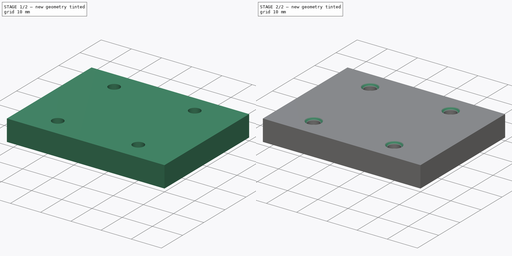
[diagram: build sequence overview — one tinted view per stage of 2, left to right]
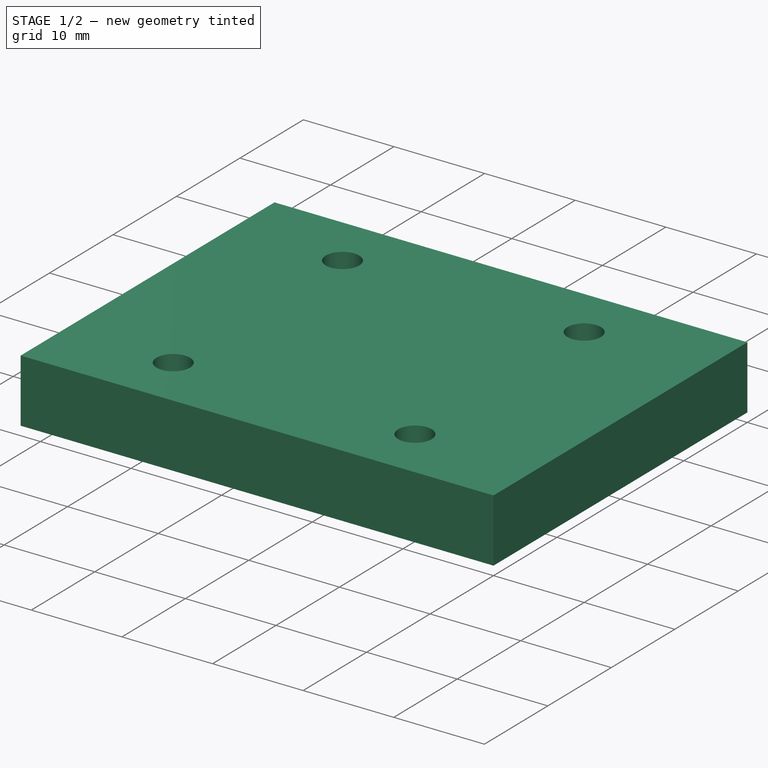
[diagram: stage 1 of 2 — iso view after this stage's code; geometry added in this stage tinted green]
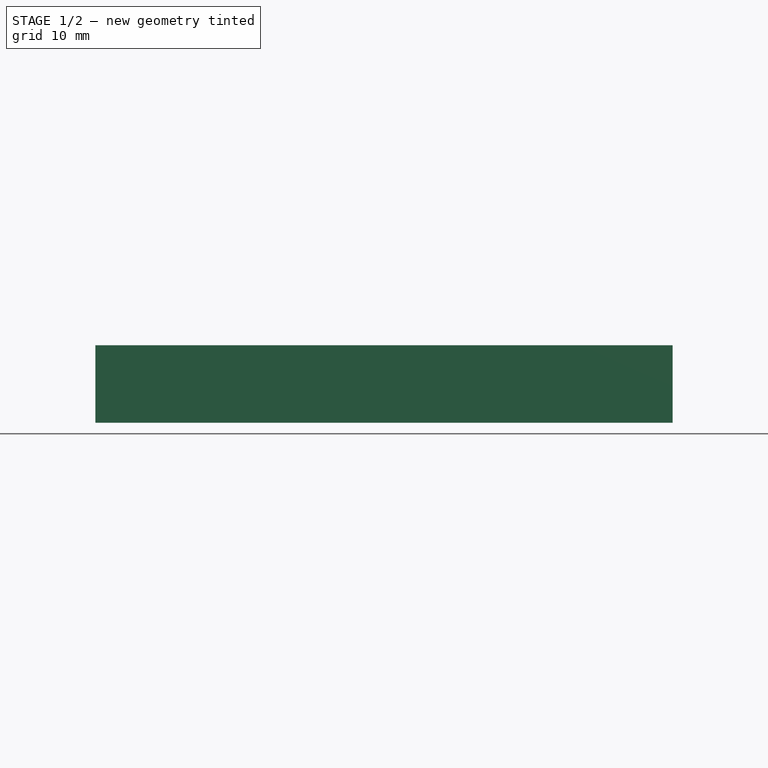
[diagram: stage 1 of 2 — front view after this stage's code; geometry added in this stage tinted green]
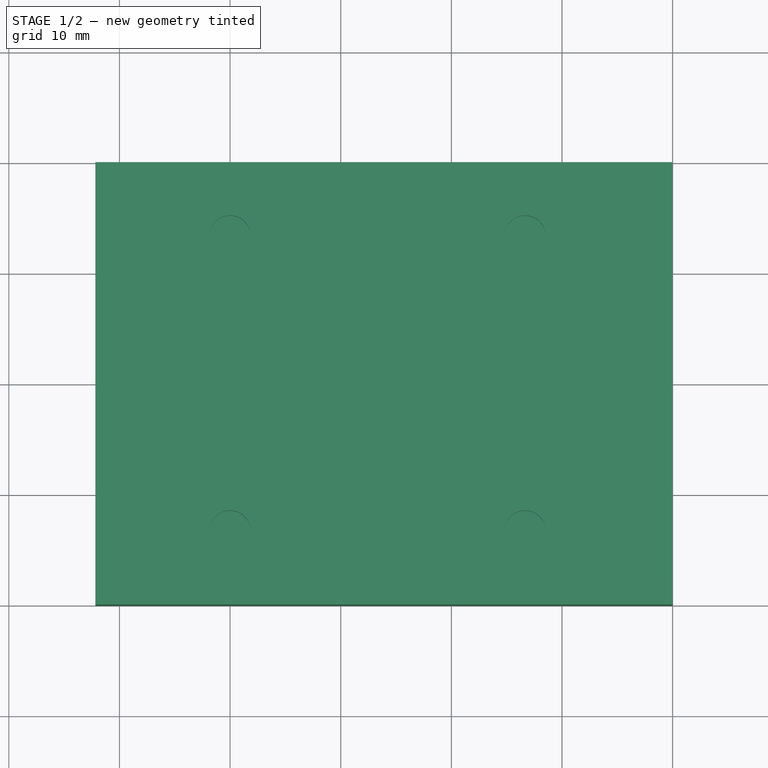
[diagram: stage 1 of 2 — top view after this stage's code; geometry added in this stage tinted green]
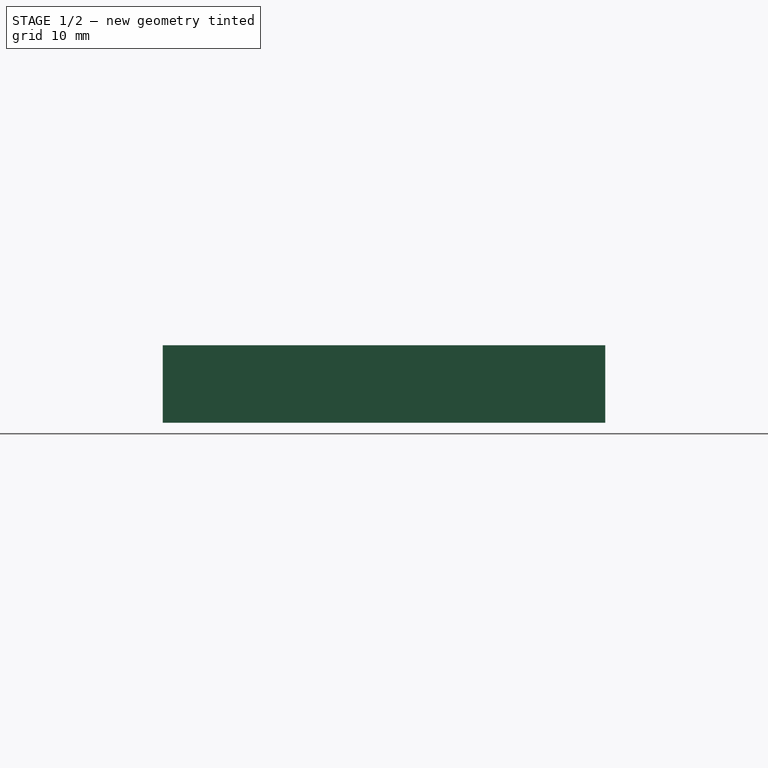
[diagram: stage 1 of 2 — right view after this stage's code; geometry added in this stage tinted green]
FCSTD DOCUMENT  (FreeCAD 0.21R33668 +26 (Git))
Label: lightpipe_press_jig_top
License: All rights reserved
LicenseURL: https://en.wikipedia.org/wiki/All_rights_reserved
objects: Sketcher::SketchObject×4, PartDesign::Pocket×2, PartDesign::Pad×1, PartDesign::Plane×1, PartDesign::Chamfer×1, PartDesign::Body×1
note: 14 computed .brp shape members not serialized (recipe doc carries the construction recipe); baked Part::Feature solids carry a one-line shape summary decoded from their .brp

FEATURE [Sketcher::SketchObject] Sketch
  FullyConstrained = true
  MapMode = 5
  Support = -> [XY_Plane]
  sketch-geometry (9):
    g0: LineSegment StartX=-52.175 StartY=-20 StartZ=0 EndX=-52.175 EndY=20 EndZ=0
    g1: LineSegment StartX=-52.175 StartY=20 StartZ=0 EndX=0 EndY=20 EndZ=0
    g2: LineSegment StartX=0 StartY=-20 StartZ=0 EndX=-52.175 EndY=-20 EndZ=0
    g3: GeomPoint X=0 Y=0 Z=0
    g4: LineSegment StartX=0 StartY=20 StartZ=0 EndX=0 EndY=-20 EndZ=0
    g5: Circle CenterX=-40.005 CenterY=16.33 CenterZ=0 NormalX=0 NormalY=0 NormalZ=1 AngleXU=0 Radius=1.6
    g6: Circle CenterX=-13.335 CenterY=16.33 CenterZ=0 NormalX=0 NormalY=0 NormalZ=1 AngleXU=0 Radius=1.6
    g7: Circle CenterX=-40.005 CenterY=-10.34 CenterZ=0 NormalX=0 NormalY=0 NormalZ=1 AngleXU=0 Radius=1.6
    g8: Circle CenterX=-13.335 CenterY=-10.34 CenterZ=0 NormalX=0 NormalY=0 NormalZ=1 AngleXU=0 Radius=1.6
  constraints (24):
    c: Coincident(g0,g1)
    c: Coincident(g2,g0)
    c: Horizontal(g1)
    c: Horizontal(g2)
    c: Vertical(g0)
    c: Coincident(g3,g-1)
    c: Vertical(g4)
    c: Coincident(g1,g4)
    c: Coincident(g2,g4)
    c: Symmetric(g1,g2,g3)
    c: DistanceX(g1,g1) = 52.175
    c: Equal(g5,g6)
    c: Equal(g8,g7)
    c: Diameter(g6) = 3.2
    c: Horizontal(g6,g5)
    c: Horizontal(g8,g7)
    c: Vertical(g7,g5)
    c: DistanceX(g5,g6) = 26.67
    c: DistanceY(g8,g6) = 26.67
    c: Equal(g8,g6)
    c: DistanceX(g6,g3) = 13.335
    c: DistanceY(g0,g0) = 40
    c: DistanceY(g5,g0) = 3.67
    c: Vertical(g8,g6)
FEATURE [PartDesign::Pad] Pad
  Direction = (0,0,1)
  Length = 7
  Length2 = 10
  Profile = -> Sketch
  ReferenceAxis = -> Sketch [N_Axis]
  Reversed = true
  Type = 0
FEATURE [Sketcher::SketchObject] Sketch001
  FullyConstrained = true
  MapMode = 5
  Support = -> [XY_Plane]
  sketch-geometry (9):
    g0: LineSegment StartX=-53.3 StartY=-20 StartZ=0 EndX=-53.3 EndY=20 EndZ=0
    g1: LineSegment StartX=-53.3 StartY=20 StartZ=0 EndX=0 EndY=20 EndZ=0
    g2: LineSegment StartX=0 StartY=-20 StartZ=0 EndX=-53.3 EndY=-20 EndZ=0
    g3: GeomPoint X=0 Y=0 Z=0
    g4: LineSegment StartX=0 StartY=20 StartZ=0 EndX=0 EndY=-20 EndZ=0
    g5: Circle CenterX=-40.005 CenterY=13.335 CenterZ=0 NormalX=0 NormalY=0 NormalZ=1 AngleXU=0 Radius=1.85
    g6: Circle CenterX=-13.335 CenterY=13.335 CenterZ=0 NormalX=0 NormalY=0 NormalZ=1 AngleXU=0 Radius=1.85
    g7: Circle CenterX=-40.005 CenterY=-13.335 CenterZ=0 NormalX=0 NormalY=0 NormalZ=1 AngleXU=0 Radius=1.85
    g8: Circle CenterX=-13.335 CenterY=-13.335 CenterZ=0 NormalX=0 NormalY=0 NormalZ=1 AngleXU=0 Radius=1.85
  constraints (23):
    c: Coincident(g0,g1)
    c: Coincident(g2,g0)
    c: Horizontal(g1)
    c: Horizontal(g2)
    c: Vertical(g0)
    c: Coincident(g3,g-1)
    c: Vertical(g4)
    c: Coincident(g1,g4)
    c: Coincident(g2,g4)
    c: Symmetric(g1,g2,g3)
    c: DistanceX(g1,g1) = 53.3
    c: Equal(g5,g6)
    c: Equal(g8,g7)
    c: Diameter(g6) = 3.7
    c: Horizontal(g6,g5)
    c: Horizontal(g8,g7)
    c: Vertical(g7,g5)
    c: DistanceX(g5,g6) = 26.67
    c: DistanceY(g8,g6) = 26.67
    c: Equal(g8,g6)
    c: DistanceX(g6,g3) = 13.335
    c: DistanceY(g0,g0) = 40
    c: Symmetric(g6,g8,g-1)
FEATURE [PartDesign::Pocket] Pocket
  BaseFeature = -> Pad
  Direction = (0,0,-1)
  Length = 2
  Length2 = 5
  Profile = -> Sketch001
  ReferenceAxis = -> Sketch001 [N_Axis]
  Type = 0
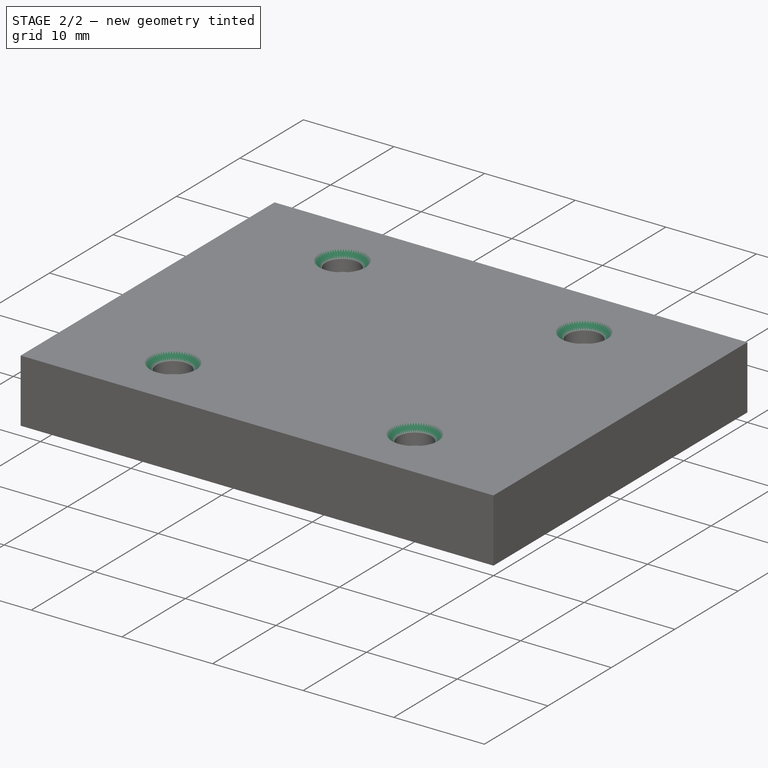
[diagram: stage 2 of 2 — iso view after this stage's code; geometry added in this stage tinted green]
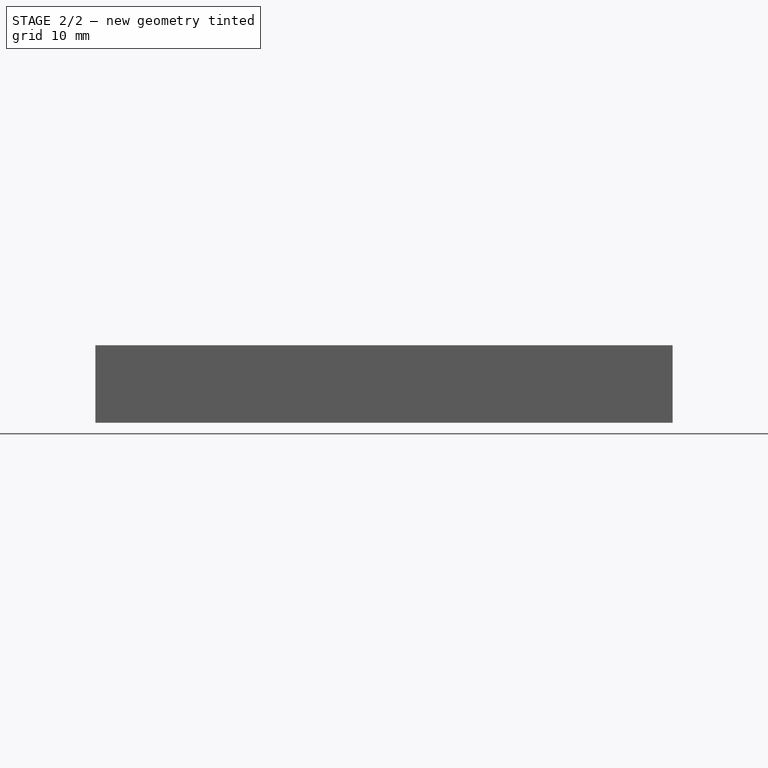
[diagram: stage 2 of 2 — front view after this stage's code; geometry added in this stage tinted green]
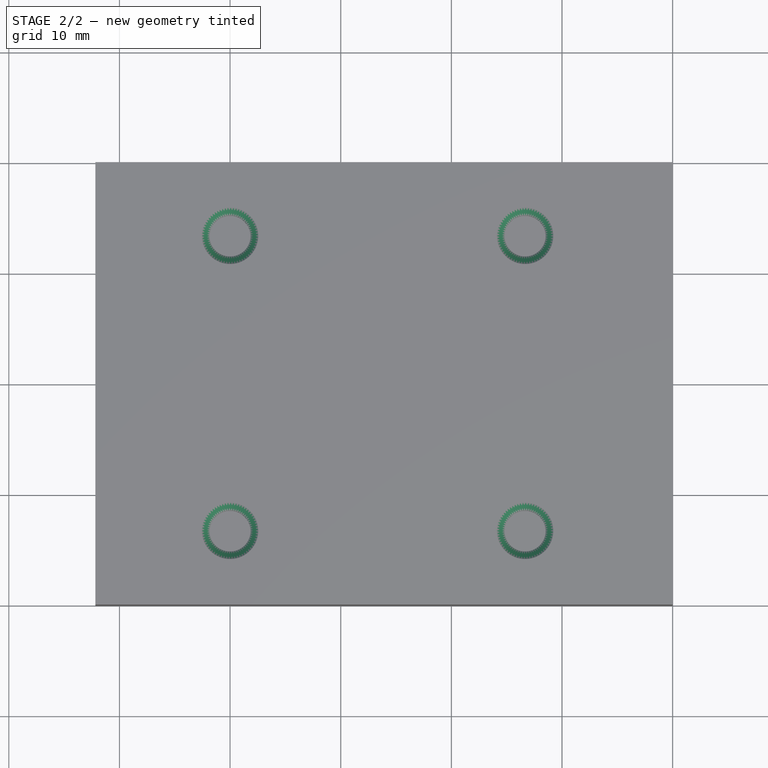
[diagram: stage 2 of 2 — top view after this stage's code; geometry added in this stage tinted green]
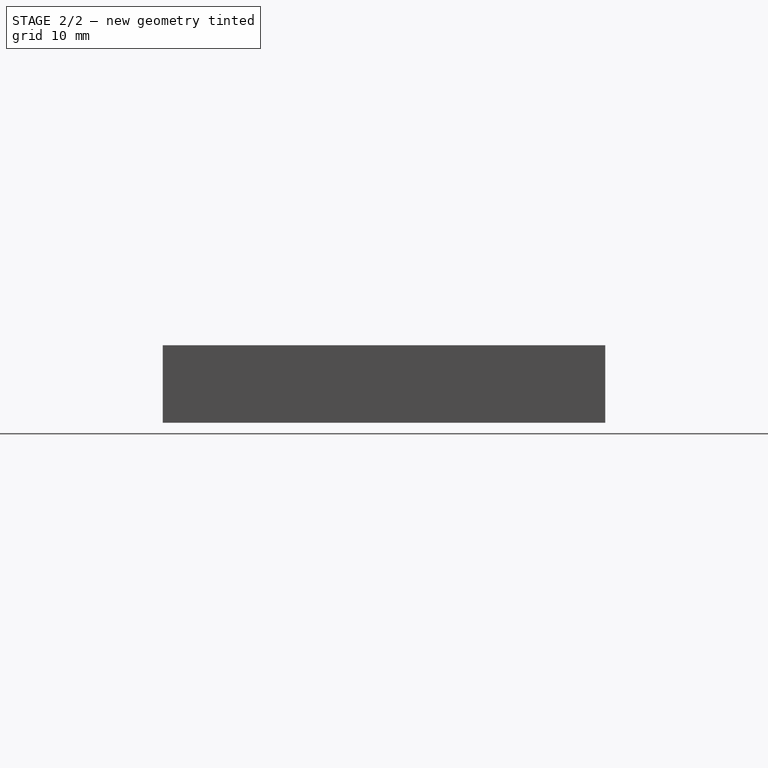
[diagram: stage 2 of 2 — right view after this stage's code; geometry added in this stage tinted green]
FEATURE [PartDesign::Plane] DatumPlane
  AttachmentOffset = pos=(0,0,7) rot=(0,0,1;0rad)
  Length = 89.5988
  MapMode = 5
  Placement = pos=(0,0,-7) rot=(0,1,0;3.14159rad)
  ResizeMode = 0
  Support = -> [XY_Plane]
  Width = 62.4238
FEATURE [Sketcher::SketchObject] Sketch002
  FullyConstrained = true
  MapMode = 5
  Placement = pos=(0,0,-7) rot=(0,1,0;3.14159rad)
  Support = -> [DatumPlane]
  sketch-geometry (1):
    g0: Circle CenterX=26.0875 CenterY=0 CenterZ=0 NormalX=0 NormalY=0 NormalZ=1 AngleXU=0 Radius=2.4
  constraints (3):
    c: PointOnObject(g0,g-1)
    c: Diameter(g0) = 4.8
    c: DistanceX(g-1,g0) = 26.0875
FEATURE [PartDesign::Pocket] Pocket001
  BaseFeature = -> Pocket
  Direction = (0,0,1)
  Length = 3
  Length2 = 5
  Profile = -> Sketch002
  ReferenceAxis = -> Sketch002 [N_Axis]
  Type = 0
FEATURE [Sketcher::SketchObject] Sketch003
  FullyConstrained = true
  MapMode = 5
  Support = -> [XY_Plane]
  sketch-geometry (6):
    g0: LineSegment StartX=-60 StartY=-13 StartZ=0 EndX=-60 EndY=13 EndZ=0
    g1: LineSegment StartX=-60 StartY=13 StartZ=0 EndX=-54.5 EndY=13 EndZ=0
    g2: LineSegment StartX=-52.5 StartY=11 StartZ=0 EndX=-52.5 EndY=-11 EndZ=0
    g3: LineSegment StartX=-54.5 StartY=-13 StartZ=0 EndX=-60 EndY=-13 EndZ=0
    g4: ArcOfCircle CenterX=-54.5 CenterY=11 CenterZ=0 NormalX=0 NormalY=0 NormalZ=1 AngleXU=0 Radius=2 StartAngle=1e-16 EndAngle=1.5708
    g5: ArcOfCircle CenterX=-54.5 CenterY=-11 CenterZ=0 NormalX=0 NormalY=0 NormalZ=1 AngleXU=0 Radius=2 StartAngle=4.71239 EndAngle=6.28319
  constraints (15):
    c: Coincident(g0,g1)
    c: Coincident(g3,g0)
    c: Horizontal(g1)
    c: Horizontal(g3)
    c: Vertical(g2)
    c: DistanceX(g0,g-1) = 60
    c: Tangent(g1,g4) = 1.5708
    c: Tangent(g2,g4) = 1.5708
    c: Tangent(g2,g5) = 1.5708
    c: Tangent(g3,g5) = 1.5708
    c: DistanceY(g3,g1) = 26
    c: DistanceX(g0,g2) = 7.5
    c: Equal(g4,g5)
    c: Diameter(g4) = 4
    c: Symmetric(g0,g0,g-1)
FEATURE [PartDesign::Chamfer] Chamfer
  Angle = 45
  Base = -> Pocket001 [Edge13,Edge12,Edge14,Edge15]
  BaseFeature = -> Pocket001
  ChamferType = 0
  FlipDirection = false
  Size = 0.7
  Size2 = 1
  SupportTransform = false
  UseAllEdges = false
FEATURE [PartDesign::Body] Body
  Group = -> [Sketch,Pad,Sketch001,Pocket,DatumPlane,Sketch002,Pocket001,Sketch003,Chamfer]
  Origin = -> Origin
  Tip = -> Chamfer
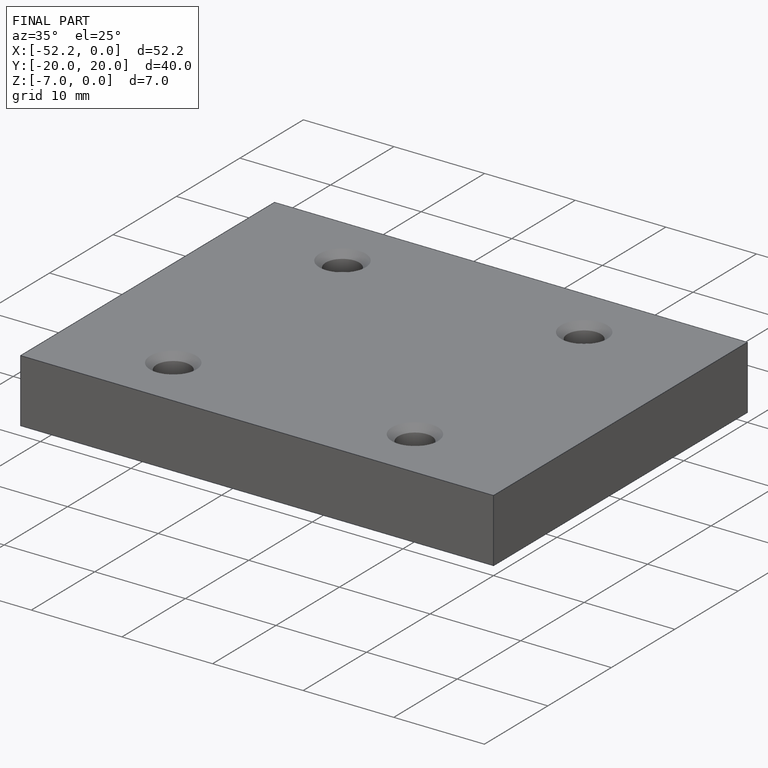
[diagram: finished part — iso view with bounding-box wireframe]
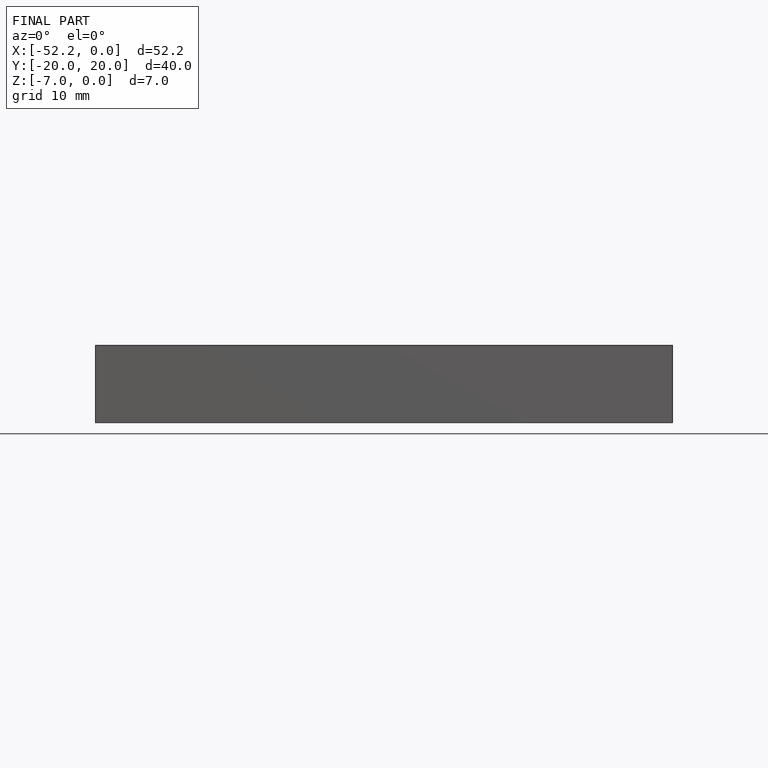
[diagram: finished part — front view with bounding-box wireframe]
